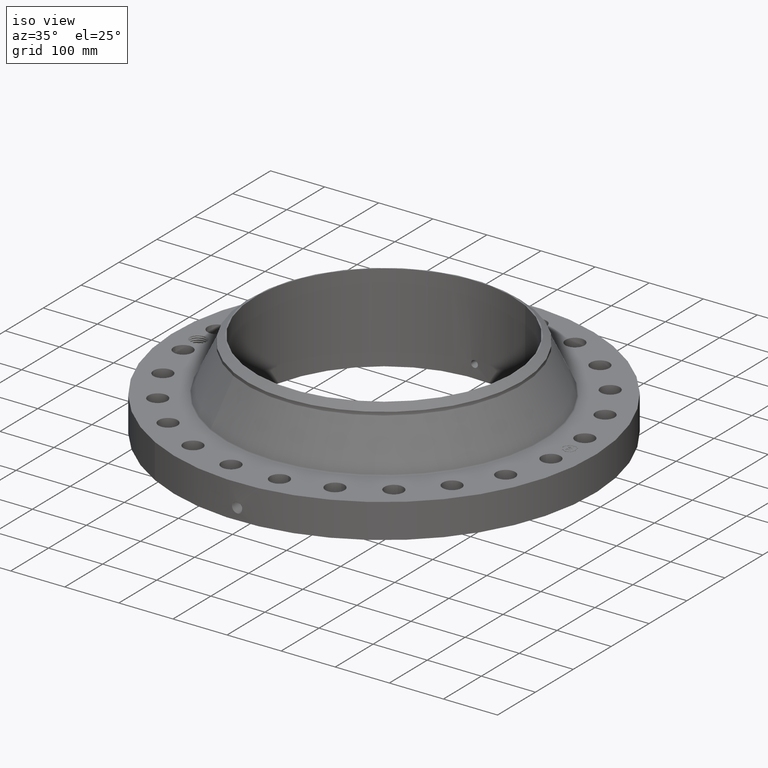
[diagram: clean part render]
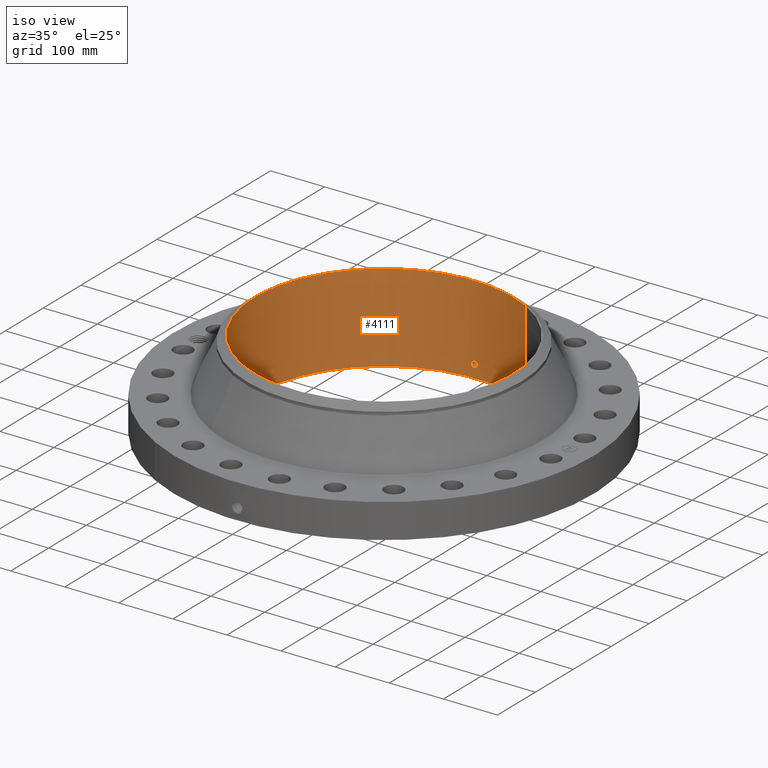
[diagram: same view with one face highlighted and labeled with its STEP entity id]
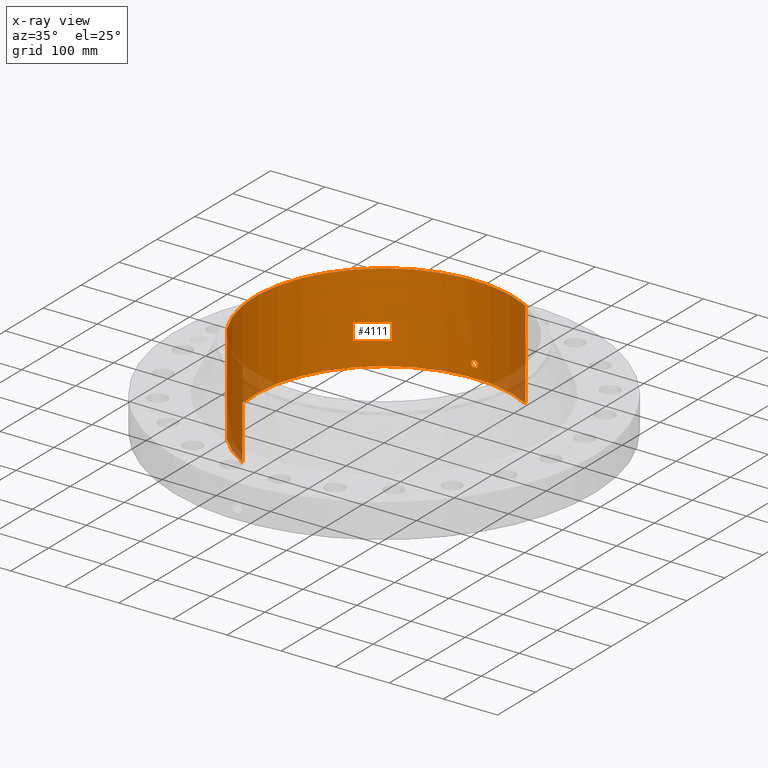
[diagram: x-ray of the same camera — body ghosted, the highlighted face saturated]
A machine part, iso view. The second image highlights one B-rep face of the part: STEP entity #4111.
The next image is the same camera in x-ray: the body ghosted, the highlighted face saturated — about 5% of this face is hidden behind the body in this view.
In plain terms, the highlighted cylindrical surface (partial cylindrical patch) has radius 238.912 mm, axis along (0, 0, -1).
Its self-contained STEP definition (entity closure, byte-faithful):
#3279=AXIS2_PLACEMENT_3D('Circle Axis2P3D',#3277,#3278,$) ;
#3988=AXIS2_PLACEMENT_3D('Cylinder Axis2P3D',#3985,#3986,#3987) ;
#4060=AXIS2_PLACEMENT_3D('Circle Axis2P3D',#4058,#4059,$) ;
#3272=CARTESIAN_POINT('Vertex',(4.50947661613,8.25454157717,-6.04241066631E-014)) ;
#3274=CARTESIAN_POINT('Vertex',(-4.50947661613,-8.25454157717,-6.04241066631E-014)) ;
#3277=CARTESIAN_POINT('Axis2P3D Location',(0.,0.,0.)) ;
#3985=CARTESIAN_POINT('Axis2P3D Location',(0.,0.,3.22000000001)) ;
#3994=CARTESIAN_POINT('Vertex',(4.50947661613,8.25454157717,6.44000000003)) ;
#3996=CARTESIAN_POINT('Vertex',(-4.50947661613,-8.25454157717,6.44000000003)) ;
#3999=CARTESIAN_POINT('Line Origine',(4.50947661613,8.25454157717,3.22000000001)) ;
#4004=CARTESIAN_POINT('Line Origine',(-4.50947661613,-8.25454157717,3.22000000001)) ;
#4058=CARTESIAN_POINT('Axis2P3D Location',(0.,0.,6.44000000003)) ;
#4070=CARTESIAN_POINT('Control Point',(0.219395640473,9.40344094221,1.05985638466)) ;
#4071=CARTESIAN_POINT('Control Point',(0.19444295084,9.40402312392,1.10553197665)) ;
#4072=CARTESIAN_POINT('Control Point',(0.157604939081,9.40479979489,1.14471202268)) ;
#4073=CARTESIAN_POINT('Control Point',(0.111107152563,9.40555514884,1.17324344839)) ;
#4074=CARTESIAN_POINT('Control Point',(0.0336719992032,9.40615612692,1.19588278054)) ;
#4075=CARTESIAN_POINT('Control Point',(-0.044672787196,9.40594843691,1.18805613801)) ;
#4076=CARTESIAN_POINT('Control Point',(-0.0703030288107,9.40578720686,1.18204321429)) ;
#4077=CARTESIAN_POINT('Control Point',(-0.143959762606,9.40507473366,1.15421006991)) ;
#4078=CARTESIAN_POINT('Control Point',(-0.203247739517,9.40391180862,1.09949340952)) ;
#4079=CARTESIAN_POINT('Control Point',(-0.232212290976,9.40314910318,1.05325278774)) ;
#4080=CARTESIAN_POINT('Control Point',(-0.255840957997,9.40252216866,0.975106622103)) ;
#4081=CARTESIAN_POINT('Control Point',(-0.248281986331,9.40272256495,0.895743459391)) ;
#4082=CARTESIAN_POINT('Control Point',(-0.242048228639,9.40289022577,0.869182241913)) ;
#4083=CARTESIAN_POINT('Control Point',(-0.232314986505,9.40313951551,0.843792319636)) ;
#4084=CARTESIAN_POINT('Control Point',(-0.219395640473,9.40344094221,0.820143615352)) ;
#4085=CARTESIAN_POINT('Vertex',(0.219395640473,9.40344094221,1.05985638466)) ;
#4087=CARTESIAN_POINT('Vertex',(-0.219395640473,9.40344094221,0.820143615352)) ;
#4091=CARTESIAN_POINT('Control Point',(-0.219395640473,9.40344094221,0.820143615352)) ;
#4092=CARTESIAN_POINT('Control Point',(-0.194442950832,9.40402312392,0.77446802334)) ;
#4093=CARTESIAN_POINT('Control Point',(-0.157604939057,9.40479979489,0.735287977306)) ;
#4094=CARTESIAN_POINT('Control Point',(-0.111107152599,9.40555514884,0.706756551625)) ;
#4095=CARTESIAN_POINT('Control Point',(-0.0336719992231,9.40615612692,0.684117219469)) ;
#4096=CARTESIAN_POINT('Control Point',(0.0446727871923,9.40594843691,0.691943861999)) ;
#4097=CARTESIAN_POINT('Control Point',(0.07030302881,9.40578720686,0.697956785716)) ;
#4098=CARTESIAN_POINT('Control Point',(0.14395976255,9.40507473366,0.725789930072)) ;
#4099=CARTESIAN_POINT('Control Point',(0.203247739426,9.40391180862,0.780506590405)) ;
#4100=CARTESIAN_POINT('Control Point',(0.23221229101,9.40314910317,0.826747212381)) ;
#4101=CARTESIAN_POINT('Control Point',(0.255840957979,9.40252216866,0.904893377922)) ;
#4102=CARTESIAN_POINT('Control Point',(0.248281986339,9.40272256495,0.984256540535)) ;
#4103=CARTESIAN_POINT('Control Point',(0.242048228611,9.40289022577,1.01081775817)) ;
#4104=CARTESIAN_POINT('Control Point',(0.232314986487,9.40313951551,1.03620768041)) ;
#4105=CARTESIAN_POINT('Control Point',(0.219395640473,9.40344094221,1.05985638466)) ;
#3278=DIRECTION('Axis2P3D Direction',(0.,0.,-0.0393700787402)) ;
#3986=DIRECTION('Axis2P3D Direction',(0.,0.,-0.0393700787402)) ;
#3987=DIRECTION('Axis2P3D XDirection',(-0.0188750212049,-0.0345504945626,0.)) ;
#4000=DIRECTION('Vector Direction',(0.,0.,-0.0393700787402)) ;
#4005=DIRECTION('Vector Direction',(0.,0.,-0.0393700787402)) ;
#4059=DIRECTION('Axis2P3D Direction',(0.,0.,-0.0393700787402)) ;
#4001=VECTOR('Line Direction',#4000,0.0393700787402) ;
#4006=VECTOR('Line Direction',#4005,0.0393700787402) ;
#4064=ORIENTED_EDGE('',*,*,#4062,.F.) ;
#4065=ORIENTED_EDGE('',*,*,#4008,.T.) ;
#4066=ORIENTED_EDGE('',*,*,#3281,.T.) ;
#4067=ORIENTED_EDGE('',*,*,#4003,.F.) ;
#4108=ORIENTED_EDGE('',*,*,#4089,.F.) ;
#4109=ORIENTED_EDGE('',*,*,#4106,.F.) ;
#4110=FACE_BOUND('',#4107,.T.) ;
#4111=ADVANCED_FACE('PartBody',(#4068,#4110),#3989,.F.) ;
#4069=B_SPLINE_CURVE_WITH_KNOTS('',5,(#4070,#4071,#4072,#4073,#4074,#4075,#4076,#4077,#4078,#4079,#4080,#4081,#4082,#4083,#4084),.UNSPECIFIED.,.F.,.U.,(6,3,3,3,6),(0.,9.34850331533,14.0229096953,23.3729494146,28.2131710896),.UNSPECIFIED.) ;
#4090=B_SPLINE_CURVE_WITH_KNOTS('',5,(#4091,#4092,#4093,#4094,#4095,#4096,#4097,#4098,#4099,#4100,#4101,#4102,#4103,#4104,#4105),.UNSPECIFIED.,.F.,.U.,(6,3,3,3,6),(0.,9.3485033184,14.0229096982,23.3729494071,28.2131710749),.UNSPECIFIED.) ;
#3280=CIRCLE('generated circle',#3279,9.40600000004) ;
#4061=CIRCLE('generated circle',#4060,9.40600000004) ;
#3989=CYLINDRICAL_SURFACE('generated cylinder',#3988,9.40600000004) ;
#3281=EDGE_CURVE('',#3275,#3273,#3280,.T.) ;
#4003=EDGE_CURVE('',#3995,#3273,#4002,.T.) ;
#4008=EDGE_CURVE('',#3997,#3275,#4007,.T.) ;
#4062=EDGE_CURVE('',#3997,#3995,#4061,.T.) ;
#4089=EDGE_CURVE('',#4086,#4088,#4069,.T.) ;
#4106=EDGE_CURVE('',#4088,#4086,#4090,.T.) ;
#4063=EDGE_LOOP('',(#4064,#4065,#4066,#4067)) ;
#4107=EDGE_LOOP('',(#4108,#4109)) ;
#4068=FACE_OUTER_BOUND('',#4063,.T.) ;
#4002=LINE('Line',#3999,#4001) ;
#4007=LINE('Line',#4004,#4006) ;
#3273=VERTEX_POINT('',#3272) ;
#3275=VERTEX_POINT('',#3274) ;
#3995=VERTEX_POINT('',#3994) ;
#3997=VERTEX_POINT('',#3996) ;
#4086=VERTEX_POINT('',#4085) ;
#4088=VERTEX_POINT('',#4087) ;